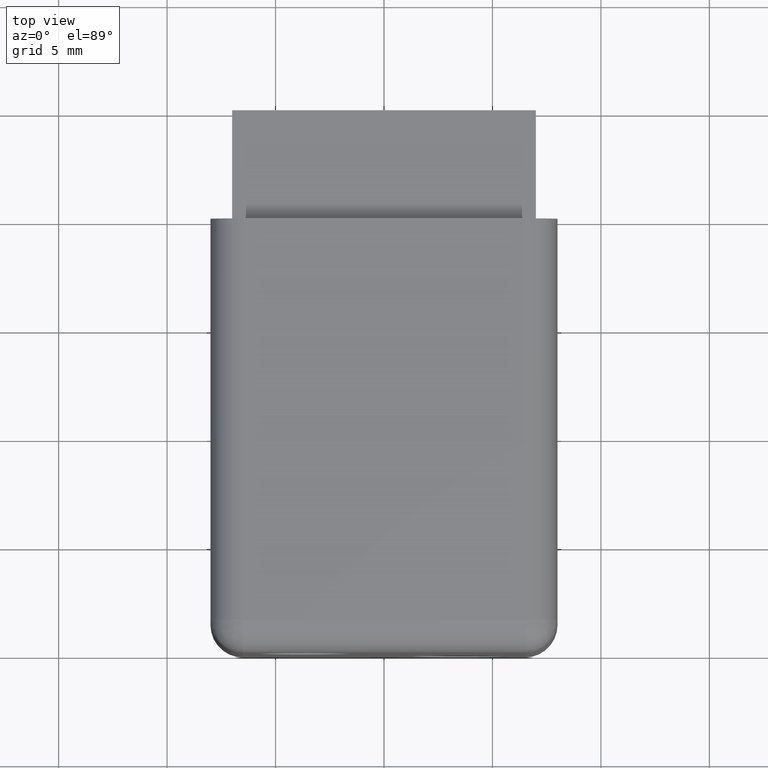
[diagram: clean part render]
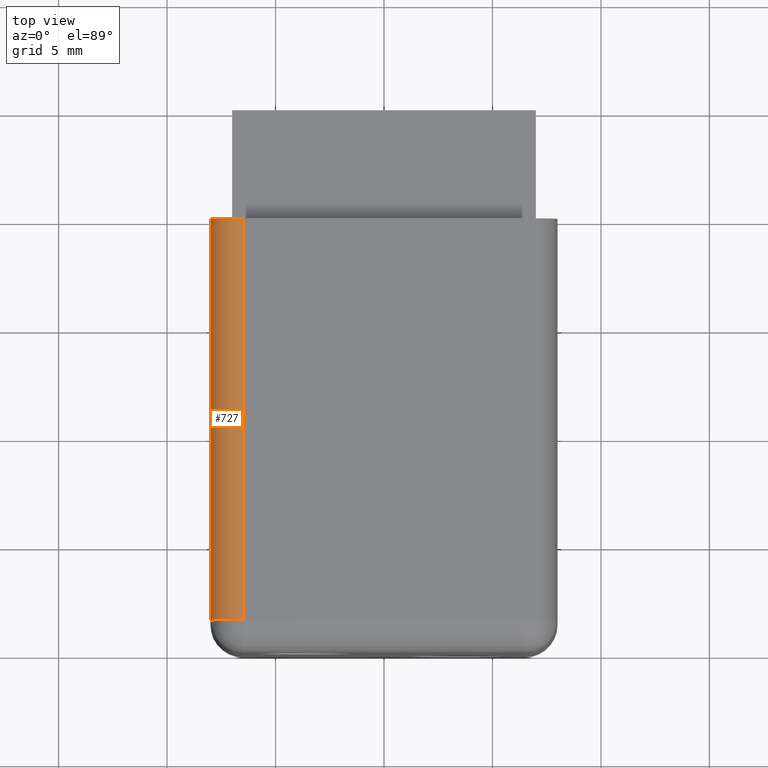
[diagram: same view with one face highlighted and labeled with its STEP entity id]
A machine part, top view. The second image highlights one B-rep face of the part: STEP entity #727.
In plain terms, the highlighted cylindrical surface (edge-blend (fillet) strip) has radius 1.5 mm, axis along (0, -1, 0).
Its self-contained STEP definition (entity closure, byte-faithful):
#257=CARTESIAN_POINT('',(-7.999999999999997,20.0,6.499999999999997));
#258=VERTEX_POINT('',#257);
#273=CARTESIAN_POINT('',(-7.999999999999997,1.500000000000001,6.499999999999997));
#274=VERTEX_POINT('',#273);
#281=CARTESIAN_POINT('',(-7.999999999999997,1.500000000000000,6.499999999999997));
#282=DIRECTION('',(0.0,1.0,0.0));
#283=VECTOR('',#282,18.500000000000000);
#284=LINE('',#281,#283);
#285=EDGE_CURVE('',#274,#258,#284,.T.);
#295=CARTESIAN_POINT('',(-6.499999999999997,20.0,7.999999999999997));
#296=VERTEX_POINT('',#295);
#305=CARTESIAN_POINT('',(-6.499999999999997,1.500000000000001,7.999999999999997));
#306=VERTEX_POINT('',#305);
#307=CARTESIAN_POINT('',(-6.499999999999997,20.0,7.999999999999997));
#308=DIRECTION('',(0.0,-1.0,0.0));
#309=VECTOR('',#308,18.500000000000000);
#310=LINE('',#307,#309);
#311=EDGE_CURVE('',#296,#306,#310,.T.);
#412=CARTESIAN_POINT('',(-6.499999999999997,20.0,6.499999999999997));
#413=DIRECTION('',(0.0,1.0,0.0));
#414=DIRECTION('',(0.0,0.0,1.0));
#415=AXIS2_PLACEMENT_3D('',#412,#413,#414);
#416=CIRCLE('',#415,1.500000000000000);
#417=EDGE_CURVE('',#258,#296,#416,.T.);
#710=CARTESIAN_POINT('',(-6.499999999999997,20.000000010000001,6.499999999999997));
#711=DIRECTION('',(0.0,-1.0,0.0));
#712=DIRECTION('',(0.0,0.0,-1.0));
#713=AXIS2_PLACEMENT_3D('',#710,#711,#712);
#714=CYLINDRICAL_SURFACE('',#713,1.500000000000000);
#715=ORIENTED_EDGE('',*,*,#417,.F.);
#716=ORIENTED_EDGE('',*,*,#285,.F.);
#717=CARTESIAN_POINT('',(-6.499999999999997,1.500000000000001,6.499999999999997));
#718=DIRECTION('',(0.0,-1.0,0.0));
#719=DIRECTION('',(0.0,0.0,-1.0));
#720=AXIS2_PLACEMENT_3D('',#717,#718,#719);
#721=CIRCLE('',#720,1.500000000000000);
#722=EDGE_CURVE('',#306,#274,#721,.T.);
#723=ORIENTED_EDGE('',*,*,#722,.F.);
#724=ORIENTED_EDGE('',*,*,#311,.F.);
#725=EDGE_LOOP('',(#715,#716,#723,#724));
#726=FACE_OUTER_BOUND('',#725,.T.);
#727=ADVANCED_FACE('',(#726),#714,.T.);